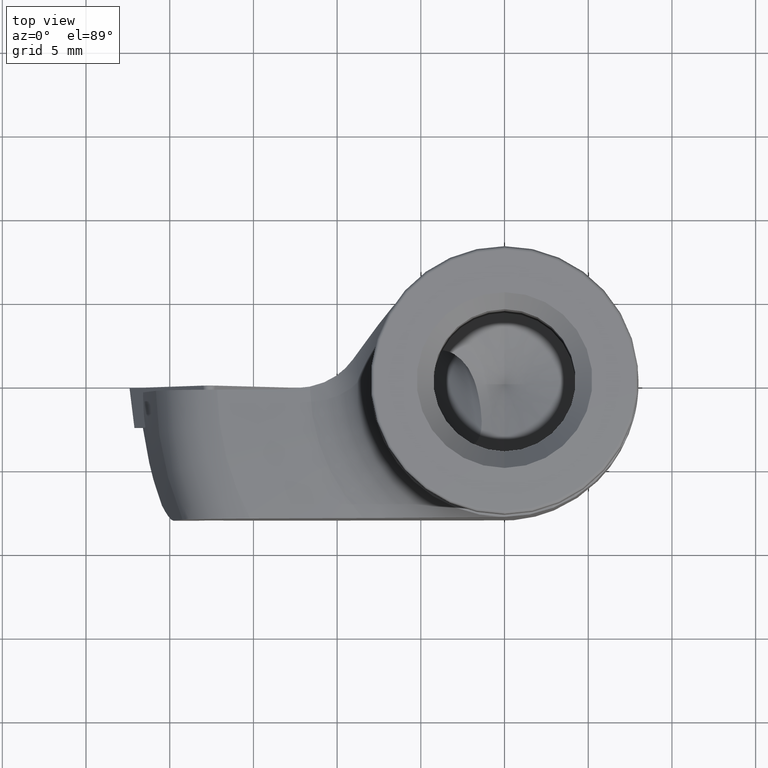
[diagram: clean part render]
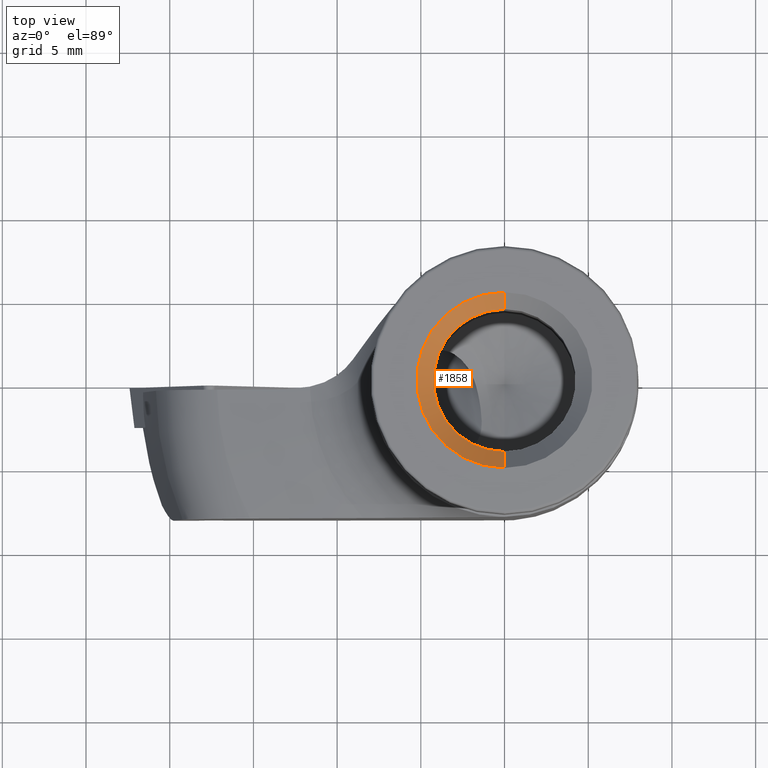
[diagram: same view with one face highlighted and labeled with its STEP entity id]
A machine part, top view. The second image highlights one B-rep face of the part: STEP entity #1858.
In plain terms, the highlighted conical surface has half-angle 45 deg.
Its self-contained STEP definition (entity closure, byte-faithful):
#1056=VERTEX_POINT('NONE',#2442);
#1206=VERTEX_POINT('NONE',#2607);
#1210=EDGE_CURVE('NONE',#1056,#1812,#2611,.T.);
#1282=EDGE_CURVE('NONE',#1206,#1812,#2687,.T.);
#1748=EDGE_CURVE('NONE',#1206,#1792,#3200,.F.);
#1792=VERTEX_POINT('NONE',#3244);
#1812=VERTEX_POINT('NONE',#3266);
#1820=EDGE_CURVE('NONE',#1792,#1056,#3275,.T.);
#1858=ADVANCED_FACE('NONE',(#3315),#3316,.F.);
#2442=CARTESIAN_POINT('',(0.0,-5.25,0.0));
#2607=CARTESIAN_POINT('',(3.9801020972289E-016,4.25,-0.999999999999995));
#2611=CIRCLE('',#5202,5.25);
#2687=LINE('',#5323,#5324);
#3200=CIRCLE('',#7036,4.25);
#3244=CARTESIAN_POINT('',(-1.22464679914735E-016,-4.25,-0.999999999999995));
#3266=CARTESIAN_POINT('',(6.4293956955236E-016,5.25,-7.87373885897475E-032));
#3275=LINE('',#7174,#7175);
#3315=FACE_OUTER_BOUND('',#7229,.T.);
#3316=CONICAL_SURFACE('',#7230,4.25,0.78539816339745);
#5202=AXIS2_PLACEMENT_3D('',#8276,#8277,#8278);
#5323=CARTESIAN_POINT('',(3.9801020972289E-016,4.25,-0.999999999999995));
#5324=VECTOR('',#8350,1000.0);
#7036=AXIS2_PLACEMENT_3D('',#8946,#8947,#8948);
#7174=CARTESIAN_POINT('',(-1.22464679914735E-016,-4.25,-0.999999999999995));
#7175=VECTOR('',#9012,1000.0);
#7229=EDGE_LOOP('',(#9047,#9048,#9049,#9050));
#7230=AXIS2_PLACEMENT_3D('',#9051,#9052,#9053);
#8276=CARTESIAN_POINT('',(0.0,0.0,0.0));
#8277=DIRECTION('',(-1.22464679914735E-016,-0.0,-1.0));
#8278=DIRECTION('',(0.0,-1.0,0.0));
#8350=DIRECTION('',(1.73191211247099E-016,0.707106781186549,0.707106781186546));
#8946=CARTESIAN_POINT('',(-1.22464679914735E-016,0.0,-0.999999999999995));
#8947=DIRECTION('',(-1.22464679914735E-016,-0.0,-1.0));
#8948=DIRECTION('',(0.0,-1.0,0.0));
#9012=DIRECTION('',(8.65956056235492E-017,-0.707106781186549,0.707106781186546));
#9047=ORIENTED_EDGE('',*,*,#1748,.F.);
#9048=ORIENTED_EDGE('',*,*,#1282,.T.);
#9049=ORIENTED_EDGE('',*,*,#1210,.F.);
#9050=ORIENTED_EDGE('',*,*,#1820,.F.);
#9051=CARTESIAN_POINT('',(-1.22464679914735E-016,0.0,-0.999999999999995));
#9052=DIRECTION('',(1.22464679914735E-016,0.0,1.0));
#9053=DIRECTION('',(0.0,-1.0,0.0));